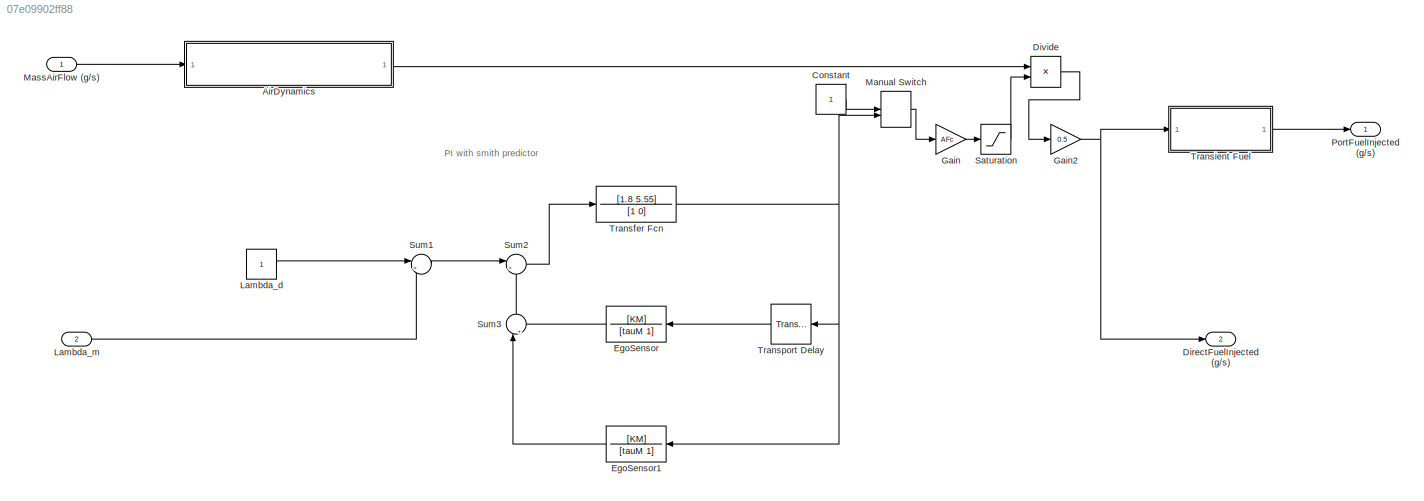
MODEL slx_07e09902ff88
KIND model
CONFIG AbsTol = auto
CONFIG EnableMultiTasking = on
CONFIG FixedStep = 0.01
CONFIG InitFcn = FuelSimFinalModParameters
CONFIG MaxStep = auto
CONFIG MinStep = auto
CONFIG RelTol = 1e-3
CONFIG SampleTimeConstraint = Unconstrained
CONFIG SolverName = ode1
CONFIG StartTime = 0.0
CONFIG StopTime = 40
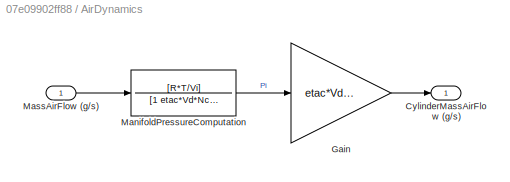
BLOCK [SubSystem] AirDynamics
  Ports = [1, 1]
  RequestExecContextInheritance = off
BLOCK [Outport] AirDynamics/CylinderMassAirFlow (g//s)
  VectorParamsAs1DForOutWhenUnconnected = off
BLOCK [Gain] AirDynamics/Gain
  Gain = etac*Vd*Nc/(2*R*T)
BLOCK [TransferFcn] AirDynamics/ManifoldPressureComputation
  Denominator = [1 etac*Vd*Nc/(2*Vi)]
  Numerator = [R*T/Vi]
BLOCK [Inport] AirDynamics/MassAirFlow (g//s)
BLOCK [Constant] Constant
BLOCK [Outport] DirectFuelInjected (g//s)
  Port = 2
  VectorParamsAs1DForOutWhenUnconnected = off
BLOCK [Product] Divide
  Inputs = */
  Ports = [2, 1]
BLOCK [TransferFcn] EgoSensor
  Denominator = [tauM 1]
  NameLocation = top
  Numerator = [KM]
BLOCK [TransferFcn] EgoSensor1
  Denominator = [tauM 1]
  NameLocation = top
  Numerator = [KM]
BLOCK [Gain] Gain
  Gain = AFc
BLOCK [Gain] Gain2
  Gain = 0.5
BLOCK [Constant] Lambda_d
BLOCK [Inport] Lambda_m
  Port = 2
BLOCK [ManualSwitch] Manual Switch
  CurrentSetting = 0
BLOCK [Inport] MassAirFlow (g//s)
BLOCK [Outport] PortFuelInjected (g//s)
  VectorParamsAs1DForOutWhenUnconnected = off
BLOCK [Saturate] Saturation
  LowerLimit = 0.00005
  UpperLimit = 1000000
BLOCK [Sum] Sum1
  Inputs = |+-
  Ports = [2, 1]
BLOCK [Sum] Sum2
  Inputs = |+-
  Ports = [2, 1]
BLOCK [Sum] Sum3
  Inputs = |+-
  NameLocation = right
  Ports = [2, 1]
BLOCK [TransferFcn] Transfer Fcn
  Denominator = [1 0]
  Numerator = [1.8 5.55]
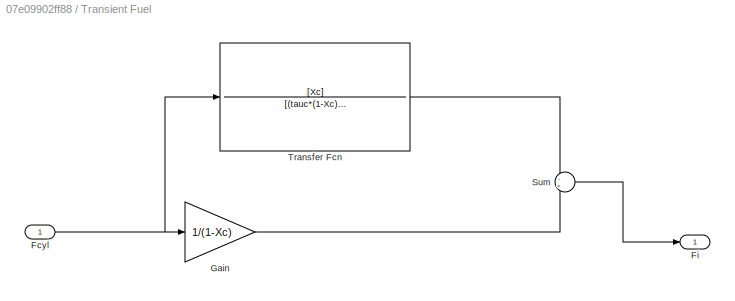
BLOCK [SubSystem] Transient Fuel
  Ports = [1, 1]
  RequestExecContextInheritance = off
BLOCK [Inport] Transient Fuel/Fcyl
BLOCK [Outport] Transient Fuel/Fi
BLOCK [Gain] Transient Fuel/Gain
  Gain = 1/(1-Xc)
BLOCK [Sum] Transient Fuel/Sum
  Inputs = -+
  Ports = [2, 1]
BLOCK [TransferFcn] Transient Fuel/Transfer Fcn
  Denominator = [(tauc*(1-Xc)^2) 1-Xc]
  Numerator = [Xc]
BLOCK [TransportDelay] Transport Delay
  DelayTime = TL
  NameLocation = top
  Ports = [1, 1]
ANNOTATION (root): PI with smith predictor
LINE AirDynamics/Gain:1 -> AirDynamics/CylinderMassAirFlow (g//s):1
LINE AirDynamics/ManifoldPressureComputation:1 -> AirDynamics/Gain:1
LINE AirDynamics/MassAirFlow (g//s):1 -> AirDynamics/ManifoldPressureComputation:1
LINE AirDynamics:1 -> Divide:1
LINE Constant:1 -> Manual Switch:1
LINE Divide:1 -> Gain2:1
LINE EgoSensor1:1 -> Sum3:1
LINE EgoSensor:1 -> Sum3:2
NET Gain2:1 -> DirectFuelInjected (g//s):1, Transient Fuel:1
LINE Gain:1 -> Saturation:1
LINE Lambda_d:1 -> Sum1:1
LINE Lambda_m:1 -> Sum1:2
LINE Manual Switch:1 -> Gain:1
LINE MassAirFlow (g//s):1 -> AirDynamics:1
LINE Saturation:1 -> Divide:2
LINE Sum1:1 -> Sum2:1
LINE Sum2:1 -> Transfer Fcn:1
LINE Sum3:1 -> Sum2:2
NET Transfer Fcn:1 -> EgoSensor1:1, Manual Switch:2, Transport Delay:1
NET Transient Fuel/Fcyl:1 -> Transient Fuel/Gain:1, Transient Fuel/Transfer Fcn:1
LINE Transient Fuel/Gain:1 -> Transient Fuel/Sum:2
LINE Transient Fuel/Sum:1 -> Transient Fuel/Fi:1
LINE Transient Fuel/Transfer Fcn:1 -> Transient Fuel/Sum:1
LINE Transient Fuel:1 -> PortFuelInjected (g//s):1
LINE Transport Delay:1 -> EgoSensor:1
note: NET lines group one-source signal fan-out (src -> all destinations, sorted); 1:1 wires keep LINE
